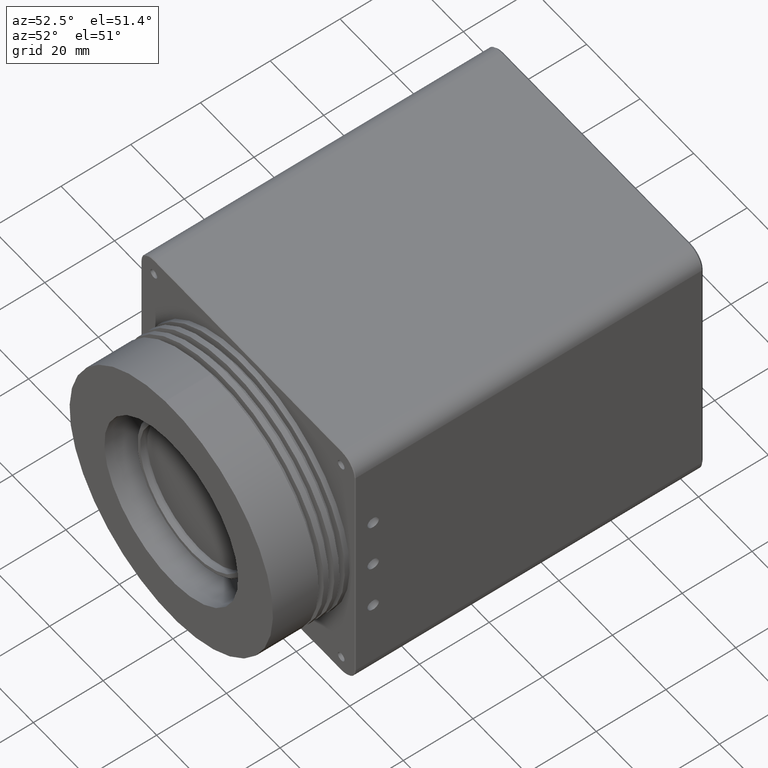
[diagram: clean part render]
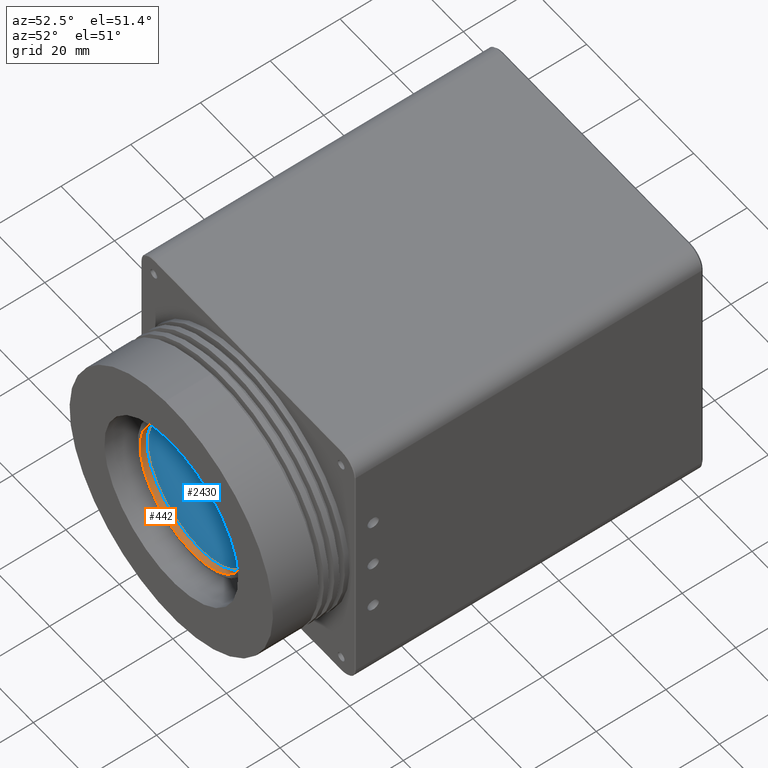
[diagram: same view with the hole feature highlighted: cylindrical wall and planar end face, labeled with their STEP entity ids]
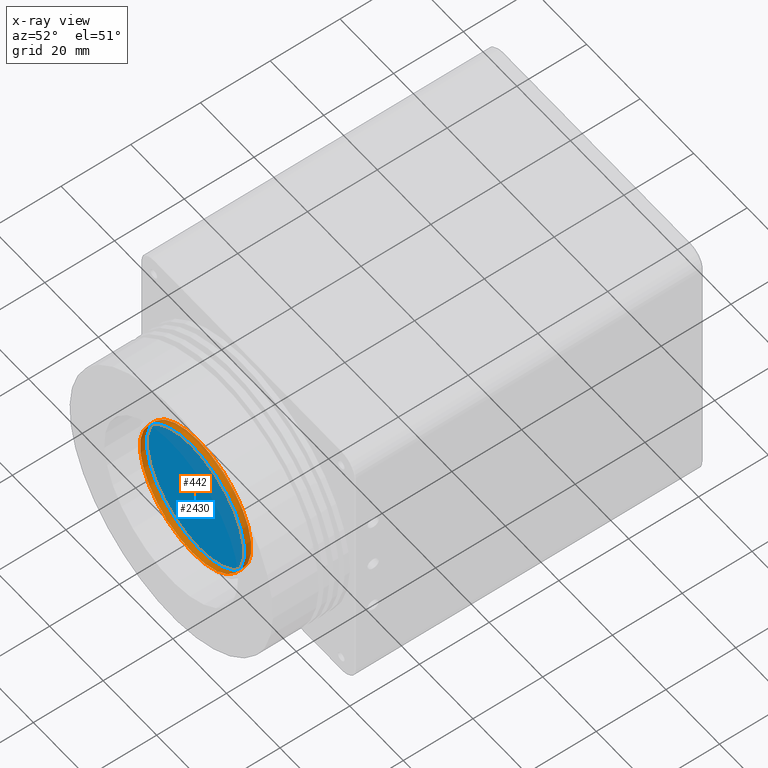
[diagram: x-ray of the same camera — body ghosted, the hole faces saturated]
A machine part, auxiliary view. The highlighted faces form one hole feature of diameter 39 mm: the cylindrical wall (entity #442, orange) and its adjacent planar end face (entity #2430, blue) — they share a circular edge in the B-rep.
The next image is the same camera in x-ray (body ghosted, the hole faces saturated) — the bore reads through the body.
Wall:
#26 = CARTESIAN_POINT ( 'NONE',  ( 17.30124153498872275, -52.39537246049660979, -6.938893903907228378E-15 ) ) ;
#111 = AXIS2_PLACEMENT_3D ( 'NONE', #1976, #2766, #1445 ) ;
#276 = DIRECTION ( 'NONE',  ( 0.000000000000000000, 0.000000000000000000, -1.000000000000000000 ) ) ;
#362 = FACE_OUTER_BOUND ( 'NONE', #1884, .T. ) ;
#385 = CARTESIAN_POINT ( 'NONE',  ( 17.30124153498872275, -50.39537246049660979, -19.50000000000000711 ) ) ;
#396 = DIRECTION ( 'NONE',  ( -0.000000000000000000, -1.000000000000000000, -0.000000000000000000 ) ) ;
#432 = AXIS2_PLACEMENT_3D ( 'NONE', #26, #1325, #276 ) ;
#442 = ADVANCED_FACE ( 'NONE', ( #362, #955 ), #1438, .F. ) ;
#542 = CIRCLE ( 'NONE', #432, 19.50000000000000000 ) ;
#955 = FACE_OUTER_BOUND ( 'NONE', #1040, .T. ) ;
#998 = ORIENTED_EDGE ( 'NONE', *, *, #2363, .T. ) ;
#1040 = EDGE_LOOP ( 'NONE', ( #998 ) ) ;
#1325 = DIRECTION ( 'NONE',  ( 0.000000000000000000, -1.000000000000000000, 0.000000000000000000 ) ) ;
#1419 = DIRECTION ( 'NONE',  ( 0.000000000000000000, 0.000000000000000000, -1.000000000000000000 ) ) ;
#1423 = VERTEX_POINT ( 'NONE', #2211 ) ;
#1438 = CYLINDRICAL_SURFACE ( 'NONE', #2619, 19.50000000000000000 ) ;
#1445 = DIRECTION ( 'NONE',  ( 0.000000000000000000, 0.000000000000000000, -1.000000000000000000 ) ) ;
#1884 = EDGE_LOOP ( 'NONE', ( #3080 ) ) ;
#1976 = CARTESIAN_POINT ( 'NONE',  ( 17.30124153498872275, -50.39537246049660979, -6.938893903907228378E-15 ) ) ;
#1980 = CIRCLE ( 'NONE', #111, 19.50000000000000000 ) ;
#2016 = CARTESIAN_POINT ( 'NONE',  ( 17.30124153498872275, -50.39537246049660979, -6.938893903907228378E-15 ) ) ;
#2211 = CARTESIAN_POINT ( 'NONE',  ( 17.30124153498872275, -52.39537246049660979, -19.50000000000000711 ) ) ;
#2363 = EDGE_CURVE ( 'NONE', #1423, #1423, #542, .T. ) ;
#2619 = AXIS2_PLACEMENT_3D ( 'NONE', #2016, #396, #1419 ) ;
#2766 = DIRECTION ( 'NONE',  ( 0.000000000000000000, -1.000000000000000000, 0.000000000000000000 ) ) ;
#3080 = ORIENTED_EDGE ( 'NONE', *, *, #3167, .F. ) ;
#3167 = EDGE_CURVE ( 'NONE', #3286, #3286, #1980, .T. ) ;
#3286 = VERTEX_POINT ( 'NONE', #385 ) ;
End face:
#48 = FACE_OUTER_BOUND ( 'NONE', #1892, .T. ) ;
#111 = AXIS2_PLACEMENT_3D ( 'NONE', #1976, #2766, #1445 ) ;
#118 = PLANE ( 'NONE',  #2526 ) ;
#385 = CARTESIAN_POINT ( 'NONE',  ( 17.30124153498872275, -50.39537246049660979, -19.50000000000000711 ) ) ;
#618 = DIRECTION ( 'NONE',  ( 0.000000000000000000, -0.000000000000000000, -1.000000000000000000 ) ) ;
#1445 = DIRECTION ( 'NONE',  ( 0.000000000000000000, 0.000000000000000000, -1.000000000000000000 ) ) ;
#1460 = CARTESIAN_POINT ( 'NONE',  ( 17.30124153498872275, -50.39537246049660979, -6.938893903907228378E-15 ) ) ;
#1462 = ORIENTED_EDGE ( 'NONE', *, *, #3167, .T. ) ;
#1892 = EDGE_LOOP ( 'NONE', ( #1462 ) ) ;
#1976 = CARTESIAN_POINT ( 'NONE',  ( 17.30124153498872275, -50.39537246049660979, -6.938893903907228378E-15 ) ) ;
#1980 = CIRCLE ( 'NONE', #111, 19.50000000000000000 ) ;
#2430 = ADVANCED_FACE ( 'NONE', ( #48 ), #118, .T. ) ;
#2526 = AXIS2_PLACEMENT_3D ( 'NONE', #1460, #2988, #618 ) ;
#2766 = DIRECTION ( 'NONE',  ( 0.000000000000000000, -1.000000000000000000, 0.000000000000000000 ) ) ;
#2988 = DIRECTION ( 'NONE',  ( 0.000000000000000000, -1.000000000000000000, 0.000000000000000000 ) ) ;
#3167 = EDGE_CURVE ( 'NONE', #3286, #3286, #1980, .T. ) ;
#3286 = VERTEX_POINT ( 'NONE', #385 ) ;